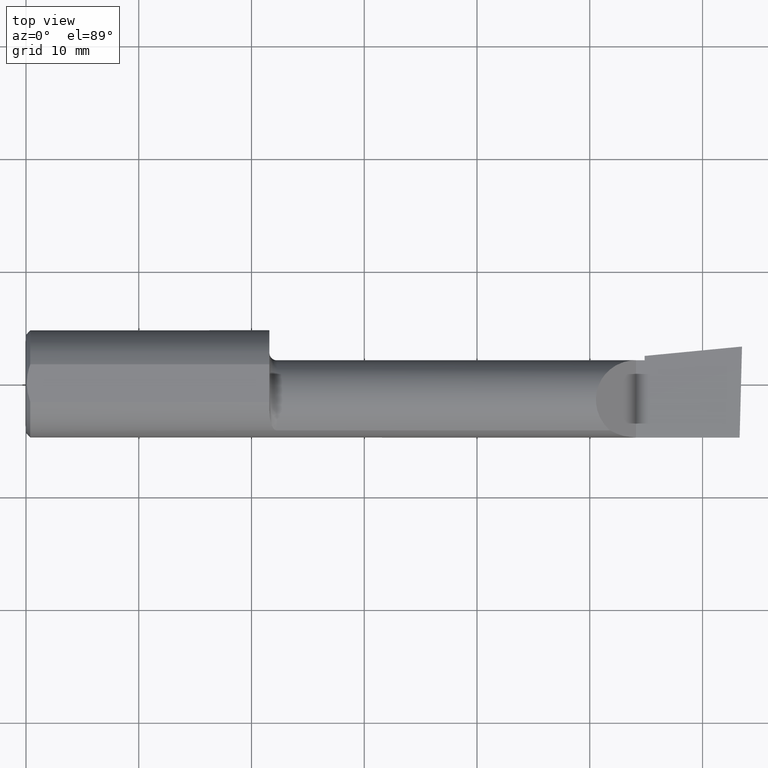
[diagram: clean part render]
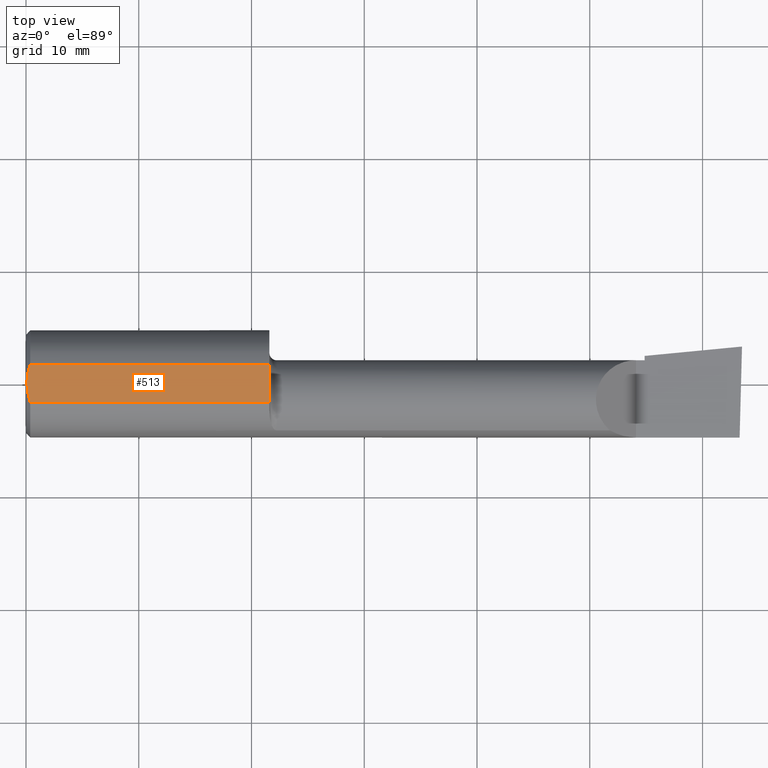
[diagram: same view with one face highlighted and labeled with its STEP entity id]
A machine part, top view. The second image highlights one B-rep face of the part: STEP entity #513.
In plain terms, the highlighted planar face has unit normal (0, -0, -1).
Its self-contained STEP definition (entity closure, byte-faithful):
#2 = VERTEX_POINT ( 'NONE', #340 ) ;
#23 = CARTESIAN_POINT ( 'NONE',  ( 0.01499999999999997863, -0.06597272163553657975, 0.1753499999999999781 ) ) ;
#52 = CARTESIAN_POINT ( 'NONE',  ( 0.008227791779583789808, -0.04447712204611815878, 0.1753499999999999781 ) ) ;
#59 = CARTESIAN_POINT ( 'NONE',  ( 0.01125230581755086272, 0.05532998191409922023, 0.1753500000000000059 ) ) ;
#71 = CARTESIAN_POINT ( 'NONE',  ( 0.8500000000000001998, 0.2373500000000000332, 0.1753499999999999504 ) ) ;
#84 = B_SPLINE_CURVE_WITH_KNOTS ( 'NONE', 3,
 ( #157, #300, #164, #497, #59, #100 ),
 .UNSPECIFIED., .F., .F.,
 ( 4, 2, 4 ),
 ( 0.003480013901590607410, 0.004330767971208083697, 0.005181522040825559984 ),
 .UNSPECIFIED. ) ;
#100 = CARTESIAN_POINT ( 'NONE',  ( 0.01499999999999999424, 0.06597272163553663527, 0.1753499999999999781 ) ) ;
#102 = ORIENTED_EDGE ( 'NONE', *, *, #183, .F. ) ;
#120 = DIRECTION ( 'NONE',  ( 0.000000000000000000, 1.000000000000000000, -1.438723400918613551E-16 ) ) ;
#127 = CARTESIAN_POINT ( 'NONE',  ( 0.8500000000000001998, 0.06597272163553663527, 0.1753499999999999781 ) ) ;
#131 = VECTOR ( 'NONE', #423, 39.37007874015748143 ) ;
#157 = CARTESIAN_POINT ( 'NONE',  ( 0.003000000000000218638, 2.334609556160449697E-17, 0.1753499999999999781 ) ) ;
#164 = CARTESIAN_POINT ( 'NONE',  ( 0.004115035183746292881, 0.02255629470626744487, 0.1753499999999999781 ) ) ;
#167 = VERTEX_POINT ( 'NONE', #599 ) ;
#183 = EDGE_CURVE ( 'NONE', #496, #167, #84, .T. ) ;
#187 = DIRECTION ( 'NONE',  ( 1.000000000000000000, 0.000000000000000000, 0.000000000000000000 ) ) ;
#191 = EDGE_LOOP ( 'NONE', ( #442, #363, #102, #431, #438 ) ) ;
#203 = PLANE ( 'NONE',  #509 ) ;
#211 = EDGE_CURVE ( 'NONE', #598, #496, #222, .T. ) ;
#222 = B_SPLINE_CURVE_WITH_KNOTS ( 'NONE', 3,
 ( #23, #583, #52, #244, #269, #565 ),
 .UNSPECIFIED., .F., .F.,
 ( 4, 2, 4 ),
 ( 0.001779942938356815062, 0.002629978419973711019, 0.003480013901590607410 ),
 .UNSPECIFIED. ) ;
#224 = EDGE_CURVE ( 'NONE', #344, #2, #473, .T. ) ;
#244 = CARTESIAN_POINT ( 'NONE',  ( 0.004093196532652216939, -0.02240707710020816909, 0.1753499999999999504 ) ) ;
#263 = CARTESIAN_POINT ( 'NONE',  ( 2.500000000000000000, 0.2373500000000000332, 0.1753499999999999504 ) ) ;
#269 = CARTESIAN_POINT ( 'NONE',  ( 0.003000000000000172667, -0.01126410975715121283, 0.1753500000000000059 ) ) ;
#300 = CARTESIAN_POINT ( 'NONE',  ( 0.003000000000000169632, 0.01127363201155560934, 0.1753499999999999781 ) ) ;
#331 = CARTESIAN_POINT ( 'NONE',  ( 0.000000000000000000, 0.06597272163553663527, 0.1753499999999999781 ) ) ;
#340 = CARTESIAN_POINT ( 'NONE',  ( 0.8500000000000001998, -0.06597272163553659363, 0.1753499999999999781 ) ) ;
#343 = EDGE_CURVE ( 'NONE', #2, #598, #556, .T. ) ;
#344 = VERTEX_POINT ( 'NONE', #127 ) ;
#356 = FACE_OUTER_BOUND ( 'NONE', #191, .T. ) ;
#363 = ORIENTED_EDGE ( 'NONE', *, *, #477, .F. ) ;
#374 = CARTESIAN_POINT ( 'NONE',  ( 0.000000000000000000, -0.06597272163553657975, 0.1753499999999999781 ) ) ;
#398 = VECTOR ( 'NONE', #187, 39.37007874015748143 ) ;
#403 = DIRECTION ( 'NONE',  ( 0.000000000000000000, -1.438723400918613551E-16, -1.000000000000000000 ) ) ;
#423 = DIRECTION ( 'NONE',  ( 6.829619984160658046E-18, -1.000000000000000000, 1.438723400918613551E-16 ) ) ;
#431 = ORIENTED_EDGE ( 'NONE', *, *, #211, .F. ) ;
#438 = ORIENTED_EDGE ( 'NONE', *, *, #343, .F. ) ;
#442 = ORIENTED_EDGE ( 'NONE', *, *, #224, .F. ) ;
#456 = CARTESIAN_POINT ( 'NONE',  ( 0.003000000000000218638, 2.334609556160449697E-17, 0.1753499999999999781 ) ) ;
#473 = LINE ( 'NONE', #71, #131 ) ;
#477 = EDGE_CURVE ( 'NONE', #167, #344, #536, .T. ) ;
#478 = VECTOR ( 'NONE', #562, 39.37007874015748143 ) ;
#496 = VERTEX_POINT ( 'NONE', #456 ) ;
#497 = CARTESIAN_POINT ( 'NONE',  ( 0.008244775919947424855, 0.04453482769755855164, 0.1753499999999999504 ) ) ;
#509 = AXIS2_PLACEMENT_3D ( 'NONE', #263, #403, #120 ) ;
#513 = ADVANCED_FACE ( 'NONE', ( #356 ), #203, .F. ) ;
#536 = LINE ( 'NONE', #331, #398 ) ;
#556 = LINE ( 'NONE', #374, #478 ) ;
#562 = DIRECTION ( 'NONE',  ( -1.000000000000000000, -0.000000000000000000, -0.000000000000000000 ) ) ;
#565 = CARTESIAN_POINT ( 'NONE',  ( 0.003000000000000218638, 2.334609556160449697E-17, 0.1753499999999999781 ) ) ;
#583 = CARTESIAN_POINT ( 'NONE',  ( 0.01128414053810044941, -0.05542038647445821781, 0.1753499999999999781 ) ) ;
#589 = CARTESIAN_POINT ( 'NONE',  ( 0.01499999999999997863, -0.06597272163553657975, 0.1753499999999999781 ) ) ;
#598 = VERTEX_POINT ( 'NONE', #589 ) ;
#599 = CARTESIAN_POINT ( 'NONE',  ( 0.01499999999999999424, 0.06597272163553663527, 0.1753499999999999781 ) ) ;